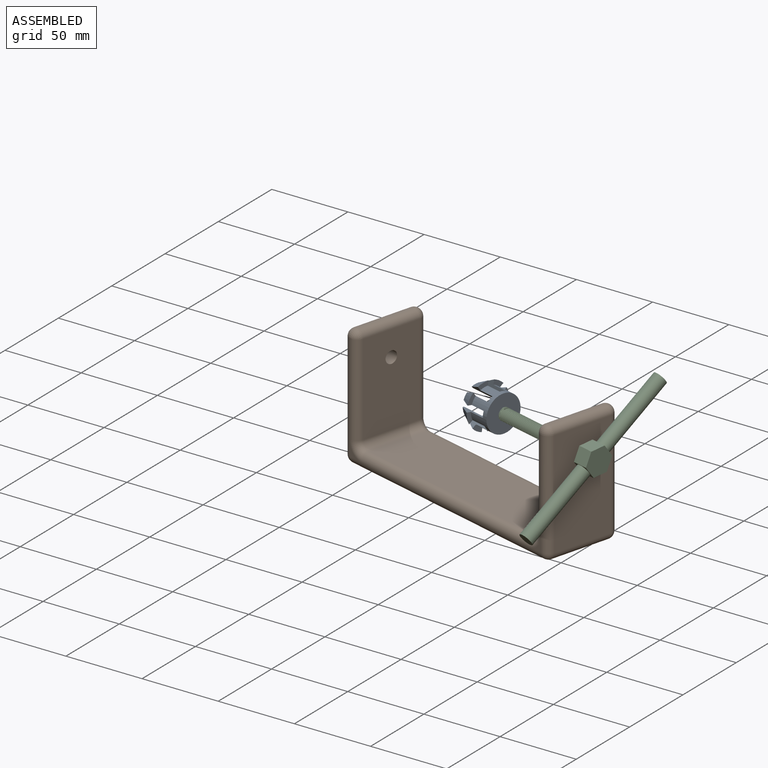
[diagram: assembled view]
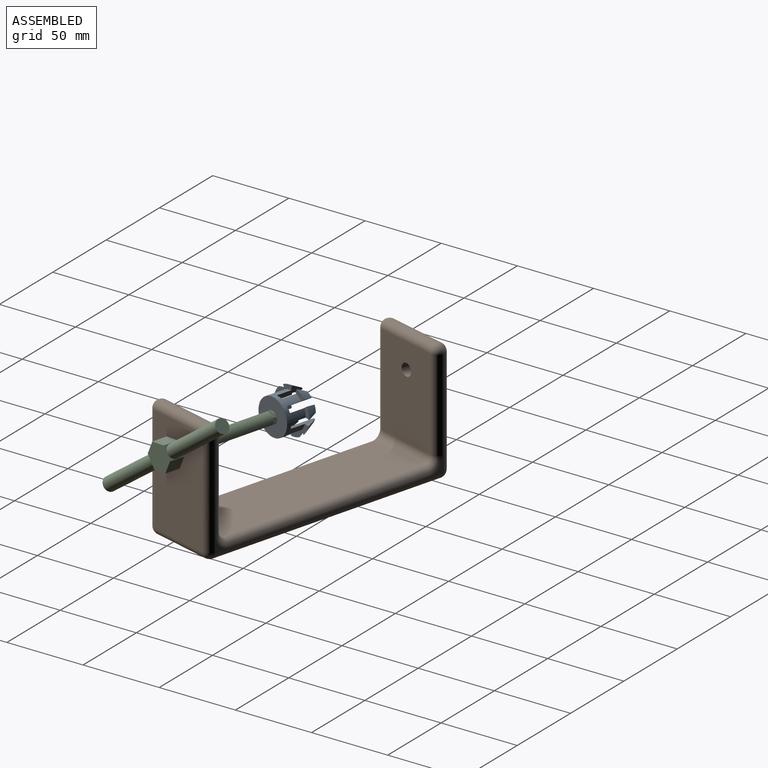
[diagram: assembled view, second angle]
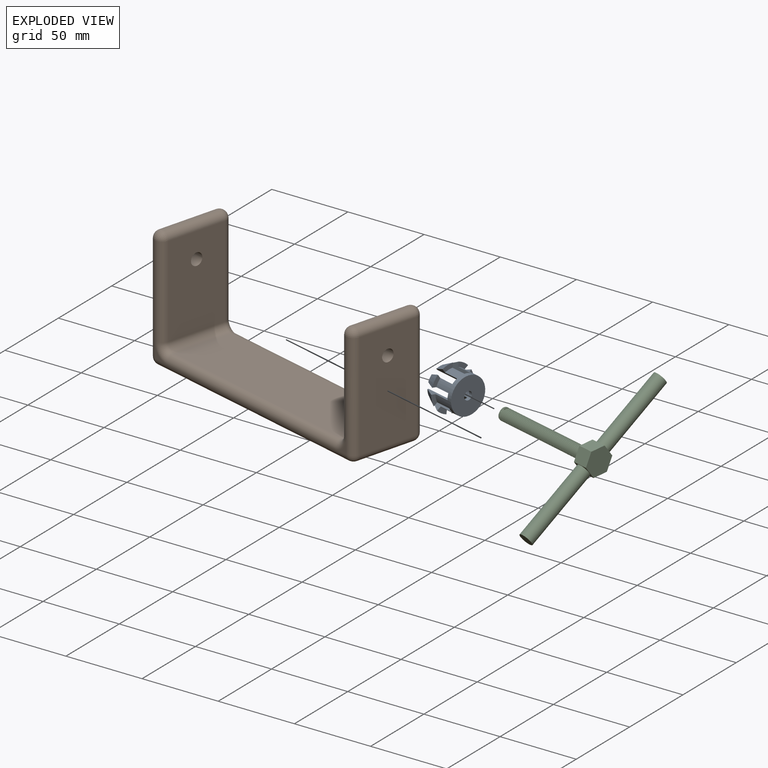
[diagram: exploded view]
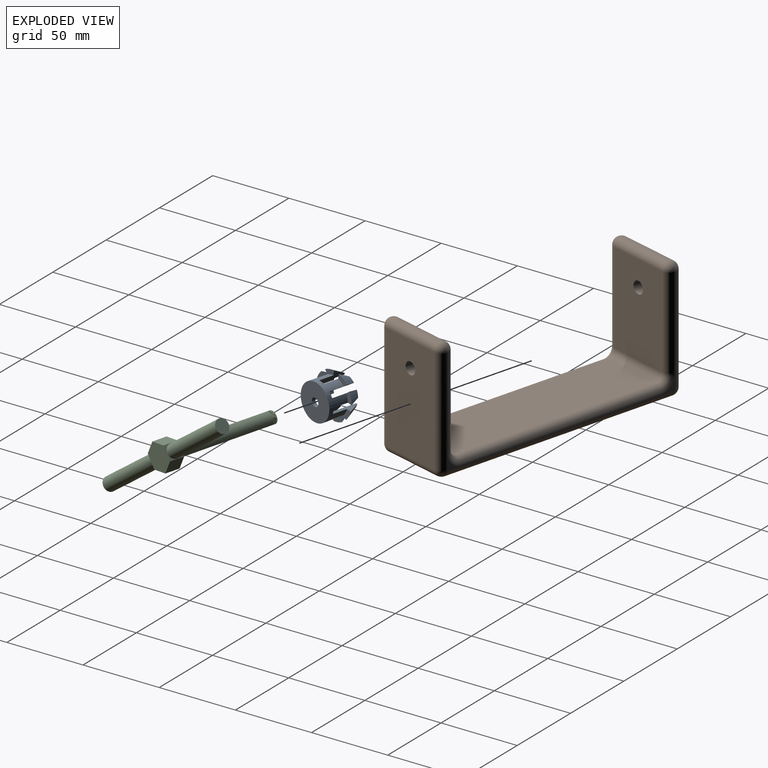
[diagram: exploded view, second angle]
ASSEMBLY  parts=3 mates=2
PART A: 54 faces, bbox 29.8x29.8x21.1 mm
  f0: cylinder r=2.75mm len=5.5mm, axis (0,0,1), area 43.2mm2, adj f50,f53
  f1: cylinder r=10mm len=18mm, axis (0,0,1), area 68.9mm2, adj f18,f23,f40,f51
  f2: cylinder r=10mm len=18mm, axis (0,0,1), area 68.9mm2, adj f16,f21,f41,f51
  f3: cylinder r=10mm len=18mm, axis (0,0,1), area 68.9mm2, adj f19,f24,f42,f51
  f4: cylinder r=10mm len=18mm, axis (0,0,1), area 68.9mm2, adj f13,f20,f43,f51
  f5: cylinder r=10mm len=18mm, axis (0,0,1), area 68.9mm2, adj f12,f17,f44,f51
  f6: cylinder r=10mm len=18mm, axis (0,0,1), area 68.9mm2, adj f10,f15,f45,f51
  f7: cylinder r=10mm len=18mm, axis (0,0,1), area 68.9mm2, adj f11,f22,f46,f51
  f8: cylinder r=10mm len=18mm, axis (0,0,1), area 68.9mm2, adj f9,f14,f49,f51
  f9: plane 18.1x5.17mm, normal (0,-1,0), area 44.7mm2, adj f8,f25,f47,f48,f49,f51
  f10: plane 18.1x5.17mm, normal (0,1,0), area 44.7mm2, adj f6,f25,f31,f38,f45,f51
  f11: plane 18.1x3.68mm, normal (-0.71,0.71,0), area 44.7mm2, adj f7,f25,f32,f39,f46,f51
  f12: plane 18.1x3.68mm, normal (0.71,-0.71,0), area 44.7mm2, adj f5,f25,f30,f37,f44,f51
  f13: plane 18.1x3.68mm, normal (0.71,-0.71,0), area 44.7mm2, adj f4,f25,f29,f36,f43,f51
  f14: plane 18.1x3.68mm, normal (-0.71,0.71,0), area 44.7mm2, adj f8,f25,f47,f48,f49,f51
  f15: plane 18.1x3.68mm, normal (-0.71,-0.71,0), area 44.7mm2, adj f6,f25,f31,f38,f45,f51
  f16: plane 18.1x3.68mm, normal (0.71,0.71,0), area 44.7mm2, adj f2,f25,f27,f34,f41,f51
  f17: plane 18.1x5.17mm, normal (0,1,0), area 44.7mm2, adj f5,f25,f30,f37,f44,f51
  f18: plane 18.1x5.17mm, normal (0,-1,0), area 44.7mm2, adj f1,f25,f26,f33,f40,f51
  f19: plane 18.1x5.17mm, normal (1,0,0), area 44.7mm2, adj f3,f25,f28,f35,f42,f51
  f20: plane 18.1x5.17mm, normal (-1,0,0), area 44.7mm2, adj f4,f25,f29,f36,f43,f51
  f21: plane 18.1x5.17mm, normal (-1,0,0), area 44.7mm2, adj f2,f25,f27,f34,f41,f51
  f22: plane 18.1x5.17mm, normal (1,0,0), area 44.7mm2, adj f7,f25,f32,f39,f46,f51
  f23: plane 18.1x3.68mm, normal (0.71,0.71,0), area 44.7mm2, adj f1,f25,f26,f33,f40,f51
  f24: plane 18.1x3.68mm, normal (-0.71,-0.71,0), area 44.7mm2, adj f3,f25,f28,f35,f42,f51
  f25: cylinder r=12mm len=24mm, axis (0,0,1), area 658.7mm2, adj f9,f10,f11,f12,f13,f14,f15,f16
  f26: plane 7.1x5.09mm, normal (0,0,-1), area 19.8mm2, adj f18,f23,f25,f33
  f27: plane 7.1x5.09mm, normal (0,0,-1), area 19.8mm2, adj f16,f21,f25,f34
  f28: plane 7.1x5.09mm, normal (0,0,-1), area 19.8mm2, adj f19,f24,f25,f35
  f29: plane 7.1x5.09mm, normal (0,0,-1), area 19.8mm2, adj f13,f20,f25,f36
  f30: plane 7.1x5.09mm, normal (0,0,-1), area 19.8mm2, adj f12,f17,f25,f37
  f31: plane 7.1x5.09mm, normal (0,0,-1), area 19.8mm2, adj f10,f15,f25,f38
  f32: plane 7.1x5.09mm, normal (0,0,-1), area 19.8mm2, adj f11,f22,f25,f39
  f33: cone r=11mm half-angle=26.6deg, axis (0,0,-1), area 54.8mm2, adj f18,f23,f26,f40
  f34: cone r=11mm half-angle=26.6deg, axis (0,0,-1), area 54.8mm2, adj f16,f21,f27,f41
  f35: cone r=11mm half-angle=26.6deg, axis (0,0,-1), area 54.8mm2, adj f19,f24,f28,f42
  f36: cone r=11mm half-angle=26.6deg, axis (0,0,-1), area 54.8mm2, adj f13,f20,f29,f43
  f37: cone r=11mm half-angle=26.6deg, axis (0,0,-1), area 54.8mm2, adj f12,f17,f30,f44
  f38: cone r=11mm half-angle=26.6deg, axis (0,0,-1), area 54.8mm2, adj f10,f15,f31,f45
  f39: cone r=11mm half-angle=26.6deg, axis (0,0,-1), area 54.8mm2, adj f11,f22,f32,f46
  f40: plane 4.23x2.47mm, normal (0,0,1), area 4.2mm2, adj f1,f18,f23,f33
  f41: plane 4.23x2.47mm, normal (0,0,1), area 4.2mm2, adj f2,f16,f21,f34
  f42: plane 4.23x2.47mm, normal (0,0,1), area 4.2mm2, adj f3,f19,f24,f35
  f43: plane 4.23x2.47mm, normal (0,0,1), area 4.2mm2, adj f4,f13,f20,f36
  f44: plane 4.23x2.47mm, normal (0,0,1), area 4.2mm2, adj f5,f12,f17,f37
  f45: plane 4.23x2.47mm, normal (0,0,1), area 4.2mm2, adj f6,f10,f15,f38
  f46: plane 4.23x2.47mm, normal (0,0,1), area 4.2mm2, adj f7,f11,f22,f39
  f47: plane 7.1x5.09mm, normal (0,0,-1), area 19.8mm2, adj f9,f14,f25,f48
  f48: cone r=11mm half-angle=26.6deg, axis (0,0,-1), area 54.8mm2, adj f9,f14,f47,f49
  f49: plane 4.23x2.47mm, normal (0,0,1), area 4.2mm2, adj f8,f9,f14,f48
  f50: plane 24x24mm, normal (0,0,-1), area 428.6mm2, adj f0,f25
  f51: plane 24x24mm, normal (0,0,1), area 328.3mm2, adj f1,f2,f3,f4,f5,f6,f7,f8
  f52: cylinder r=4mm len=8mm, axis (0,0,1), area 12.6mm2, adj f51,f53
  f53: plane 8x8mm, normal (0,0,1), area 26.5mm2, adj f0,f52
PART B: 36 faces, bbox 50x170x80 mm
  f0: plane 10x10mm, normal (1,0,0), area 21.5mm2, adj f21,f24,f28
  f1: plane 10x10mm, normal (1,0,0), area 21.5mm2, adj f28,f30,f32
  f2: plane 10x10mm, normal (-1,0,0), area 21.5mm2, adj f12,f14,f19
  f3: plane 10x10mm, normal (-1,0,0), area 21.5mm2, adj f17,f19,f23
  f4: plane 70x40mm, normal (0,-1,0), area 2749.7mm2, adj f10,f17,f29,f32,f34
  f5: plane 160x40mm, normal (0,0,-1), area 6400mm2, adj f19,f22,f28,f29
  f6: plane 70x40mm, normal (0,1,0), area 2749.7mm2, adj f12,f13,f21,f22,f35
  f7: plane 60x40mm, normal (0,-1,0), area 2349.7mm2, adj f12,f13,f20,f21,f35
  f8: plane 140x40mm, normal (0,0,1), area 5600mm2, adj f19,f20,f27,f28
  f9: plane 60x40mm, normal (0,1,0), area 2349.7mm2, adj f10,f17,f27,f32,f34
  f10: cylinder r=5mm len=40mm, axis (-1,0,0), area 628.3mm2, adj f4,f9,f16,f33
  f11: sphere r=5mm, area 78.5mm2, adj f12,f13
  f12: cylinder r=5mm len=70mm, axis (0,0,-1), area 1021mm2, adj f2,f6,f7,f11,f14,f18
  f13: cylinder r=5mm len=40mm, axis (1,0,0), area 628.3mm2, adj f6,f7,f11,f15
  f14: torus R=10mm, axis (1,0,0), area 84.1mm2, adj f2,f12,f19,f20
  f15: sphere r=5mm, area 78.5mm2, adj f13,f21
  f16: sphere r=5mm, area 78.5mm2, adj f10,f17
  f17: cylinder r=5mm len=70mm, axis (0,0,1), area 1021mm2, adj f3,f4,f9,f16,f23,f26
  f18: sphere r=5mm, area 39.3mm2, adj f12,f19,f22
  f19: cylinder r=5mm len=160mm, axis (0,-1,0), area 2356.2mm2, adj f2,f3,f5,f8,f14,f18,f23,f26
  f20: cylinder r=5mm len=40mm, axis (1,0,0), area 314.2mm2, adj f7,f8,f14,f24
  f21: cylinder r=5mm len=70mm, axis (0,0,1), area 1021mm2, adj f0,f6,f7,f15,f24,f25
  f22: cylinder r=5mm len=40mm, axis (-1,0,0), area 314.2mm2, adj f5,f6,f18,f25
  f23: torus R=10mm, axis (1,0,0), area 84.1mm2, adj f3,f17,f19,f27
  f24: torus R=10mm, axis (1,0,0), area 84.1mm2, adj f0,f20,f21,f28
  f25: sphere r=5mm, area 39.3mm2, adj f21,f22,f28
  f26: sphere r=5mm, area 39.3mm2, adj f17,f19,f29
  f27: cylinder r=5mm len=40mm, axis (-1,0,0), area 314.2mm2, adj f8,f9,f23,f30
  f28: cylinder r=5mm len=160mm, axis (0,1,0), area 2356.2mm2, adj f0,f1,f5,f8,f24,f25,f30,f31
  f29: cylinder r=5mm len=40mm, axis (1,0,0), area 314.2mm2, adj f4,f5,f26,f31
  f30: torus R=10mm, axis (1,0,0), area 84.1mm2, adj f1,f27,f28,f32
  f31: sphere r=5mm, area 39.3mm2, adj f28,f29,f32
  f32: cylinder r=5mm len=70mm, axis (0,0,-1), area 1021mm2, adj f1,f4,f9,f30,f31,f33
  f33: sphere r=5mm, area 78.5mm2, adj f10,f32
  f34: cylinder r=4mm len=10mm, axis (0,1,0), area 251.3mm2, adj f4,f9
  f35: cylinder r=4mm len=10mm, axis (0,1,0), area 251.3mm2, adj f6,f7
PART C: 74 faces, bbox 19.3x81.3x116.8 mm
  f0: cylinder r=4mm len=8mm, axis (0,1,0), area 20.4mm2, adj f1,f64,f71,f72,f73
  f1: cylinder r=4mm len=8mm, axis (0,1,0), area 4.4mm2, adj f0,f2,f72,f73
  f2: cylinder r=4mm len=8mm, axis (0,1,0), area 4.4mm2, adj f1,f3,f72,f73
  f3: cylinder r=4mm len=8mm, axis (0,1,0), area 4.4mm2, adj f2,f4,f72,f73
  f4: cylinder r=4mm len=8mm, axis (0,1,0), area 4.4mm2, adj f3,f5,f72,f73
  f5: cylinder r=4mm len=8mm, axis (0,1,0), area 4.4mm2, adj f4,f6,f72,f73
  f6: cylinder r=4mm len=8mm, axis (0,1,0), area 4.4mm2, adj f5,f7,f72,f73
  f7: cylinder r=4mm len=8mm, axis (0,1,0), area 4.4mm2, adj f6,f8,f72,f73
  f8: cylinder r=4mm len=8mm, axis (0,1,0), area 4.4mm2, adj f7,f9,f72,f73
  f9: cylinder r=4mm len=8mm, axis (0,1,0), area 4.4mm2, adj f8,f10,f72,f73
  f10: cylinder r=4mm len=8mm, axis (0,1,0), area 4.4mm2, adj f9,f11,f72,f73
  f11: cylinder r=4mm len=8mm, axis (0,1,0), area 4.4mm2, adj f10,f12,f72,f73
  f12: cylinder r=4mm len=8mm, axis (0,1,0), area 4.4mm2, adj f11,f13,f72,f73
  f13: cylinder r=4mm len=8mm, axis (0,1,0), area 4.4mm2, adj f12,f14,f72,f73
  f14: cylinder r=4mm len=8mm, axis (0,1,0), area 4.4mm2, adj f13,f15,f72,f73
  f15: cylinder r=4mm len=8mm, axis (0,1,0), area 4.4mm2, adj f14,f16,f72,f73
  f16: cylinder r=4mm len=8mm, axis (0,1,0), area 4.4mm2, adj f15,f17,f72,f73
  f17: cylinder r=4mm len=8mm, axis (0,1,0), area 4.4mm2, adj f16,f18,f72,f73
  f18: cylinder r=4mm len=8mm, axis (0,1,0), area 4.4mm2, adj f17,f19,f72,f73
  f19: cylinder r=4mm len=8mm, axis (0,1,0), area 4.4mm2, adj f18,f20,f72,f73
  f20: cylinder r=4mm len=8mm, axis (0,1,0), area 4.4mm2, adj f19,f21,f72,f73
  f21: cylinder r=4mm len=8mm, axis (0,1,0), area 4.4mm2, adj f20,f22,f72,f73
  f22: cylinder r=4mm len=8mm, axis (0,1,0), area 4.4mm2, adj f21,f23,f72,f73
  f23: cylinder r=4mm len=8mm, axis (0,1,0), area 4.4mm2, adj f22,f24,f72,f73
  f24: cylinder r=4mm len=8mm, axis (0,1,0), area 4.4mm2, adj f23,f25,f72,f73
  f25: cylinder r=4mm len=8mm, axis (0,1,0), area 4.4mm2, adj f24,f26,f72,f73
  f26: cylinder r=4mm len=8mm, axis (0,1,0), area 4.4mm2, adj f25,f27,f72,f73
  f27: cylinder r=4mm len=8mm, axis (0,1,0), area 4.4mm2, adj f26,f28,f72,f73
  f28: cylinder r=4mm len=8mm, axis (0,1,0), area 4.4mm2, adj f27,f29,f72,f73
  f29: cylinder r=4mm len=8mm, axis (0,1,0), area 4.4mm2, adj f28,f30,f72,f73
  f30: cylinder r=4mm len=8mm, axis (0,1,0), area 4.4mm2, adj f29,f31,f72,f73
  f31: cylinder r=4mm len=8mm, axis (0,1,0), area 4.4mm2, adj f30,f32,f72,f73
  f32: cylinder r=4mm len=8mm, axis (0,1,0), area 4.4mm2, adj f31,f33,f72,f73
  f33: cylinder r=4mm len=8mm, axis (0,1,0), area 4.4mm2, adj f32,f34,f72,f73
  f34: cylinder r=4mm len=8mm, axis (0,1,0), area 4.4mm2, adj f33,f35,f72,f73
  f35: cylinder r=4mm len=8mm, axis (0,1,0), area 4.4mm2, adj f34,f36,f72,f73
  f36: cylinder r=4mm len=8mm, axis (0,1,0), area 4.4mm2, adj f35,f37,f72,f73
  f37: cylinder r=4mm len=8mm, axis (0,1,0), area 4.4mm2, adj f36,f38,f72,f73
  f38: cylinder r=4mm len=8mm, axis (0,1,0), area 4.4mm2, adj f37,f39,f72,f73
  f39: cylinder r=4mm len=8mm, axis (0,1,0), area 4.4mm2, adj f38,f40,f72,f73
  f40: cylinder r=4mm len=8mm, axis (0,1,0), area 4.4mm2, adj f39,f41,f72,f73
  f41: cylinder r=4mm len=8mm, axis (0,1,0), area 4.4mm2, adj f40,f42,f72,f73
  f42: cylinder r=4mm len=8mm, axis (0,1,0), area 4.4mm2, adj f41,f43,f72,f73
  f43: cylinder r=4mm len=8mm, axis (0,1,0), area 4.4mm2, adj f42,f44,f72,f73
  f44: cylinder r=4mm len=8mm, axis (0,1,0), area 4.4mm2, adj f43,f45,f72,f73
  f45: cylinder r=4mm len=8mm, axis (0,1,0), area 4.4mm2, adj f44,f46,f72,f73
  f46: cylinder r=4mm len=8mm, axis (0,1,0), area 4.4mm2, adj f45,f47,f72,f73
  f47: cylinder r=4mm len=8mm, axis (0,1,0), area 4.4mm2, adj f46,f48,f72,f73
  f48: cylinder r=4mm len=8mm, axis (0,1,0), area 4.4mm2, adj f47,f49,f72,f73
  f49: cylinder r=4mm len=8mm, axis (0,1,0), area 4.4mm2, adj f48,f50,f72,f73
  f50: cylinder r=4mm len=8mm, axis (0,1,0), area 4.4mm2, adj f49,f51,f72,f73
  f51: cylinder r=4mm len=8mm, axis (0,1,0), area 4.4mm2, adj f50,f52,f72,f73
  f52: cylinder r=4mm len=8mm, axis (0,1,0), area 4.4mm2, adj f51,f53,f72,f73
  f53: cylinder r=4mm len=8mm, axis (0,1,0), area 4.4mm2, adj f52,f54,f72,f73
  f54: cylinder r=4mm len=8mm, axis (0,1,0), area 4.4mm2, adj f53,f55,f72,f73
  f55: cylinder r=4mm len=3.15mm, axis (0,1,0), area 0.3mm2, adj f54,f56,f73
  f56: plane 7.9x7.85mm, normal (0,-1,0), area 21.3mm2, adj f55,f69,f72,f73
  f57: plane 10x9.32mm, normal (0,0,-1), area 29.6mm2, adj f58,f62,f63,f64,f67
  f58: plane 10x8.07mm, normal (-0.87,0,-0.5), area 93.2mm2, adj f57,f59,f63,f64
  f59: plane 10x8.07mm, normal (-0.87,0,0.5), area 93.2mm2, adj f58,f60,f63,f64
  f60: plane 10x9.32mm, normal (0,0,1), area 29.6mm2, adj f59,f61,f63,f64,f65
  f61: plane 10x8.07mm, normal (0.87,0,0.5), area 93.2mm2, adj f60,f62,f63,f64
  f62: plane 10x8.07mm, normal (0.87,0,-0.5), area 93.2mm2, adj f57,f61,f63,f64
  f63: plane 18.65x16.15mm, normal (0,1,0), area 225.8mm2, adj f57,f58,f59,f60,f61,f62
  f64: plane 18.65x16.15mm, normal (0,-1,0), area 175.6mm2, adj f0,f57,f58,f59,f60,f61,f62
  f65: cylinder r=4.5mm len=50mm, axis (0,0,-1), area 1413.7mm2, adj f60,f66
  f66: plane 9x9mm, normal (0,0,1), area 63.6mm2, adj f65
  f67: cylinder r=4.5mm len=50mm, axis (0,0,1), area 1413.7mm2, adj f57,f68
  f68: plane 9x9mm, normal (0,0,-1), area 63.6mm2, adj f67
  f69: cylinder r=2.5mm len=40mm, axis (0,-1,0), area 628.3mm2, adj f56,f70
  f70: plane 5x5mm, normal (0,-1,0), area 19.6mm2, adj f69
  f71: plane 1.08x0.93mm, normal (0,0,-1), area 0.5mm2, adj f0,f72,f73
  f72: bspline ~70.54x9.24mm, area 1334.3mm2, adj f0,f1,f2,f3,f4,f5,f6,f7
  f73: bspline ~70.12x9.24mm, area 1323mm2, adj f0,f1,f2,f3,f4,f5,f6,f7
PLACE A rot(axis=(-0.54,-0.78,0.32),96.5deg) t=(-58.05,-121.08,19.02)mm
PLACE B rot(axis=(0,0,-1),105deg) t=(-68.32,-92.44,-39.21)mm fixed
PLACE C rot(axis=(-0.43,-0.33,-0.84),114.4deg) t=(9.57,-139.2,19.02)mm
MATE cylindrical C.f0 <-> B.f34  axis (-0.97,0.26,0) through (9.57,-139.2,19.02)mm
MATE fastened A.f0 <-> C.f69  axis (0.97,-0.26,0) through (-58.05,-121.08,19.02)mm
